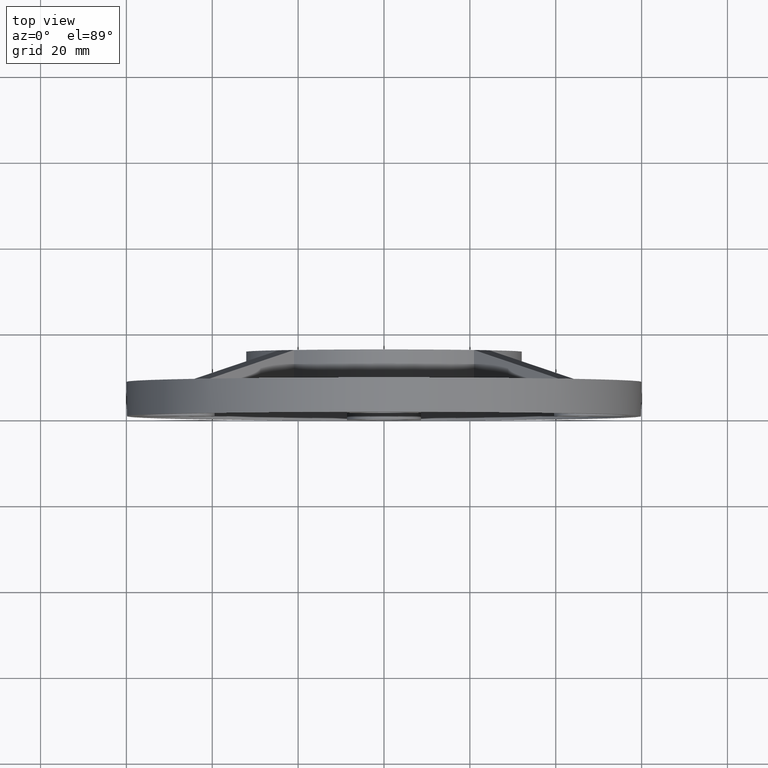
[diagram: clean part render]
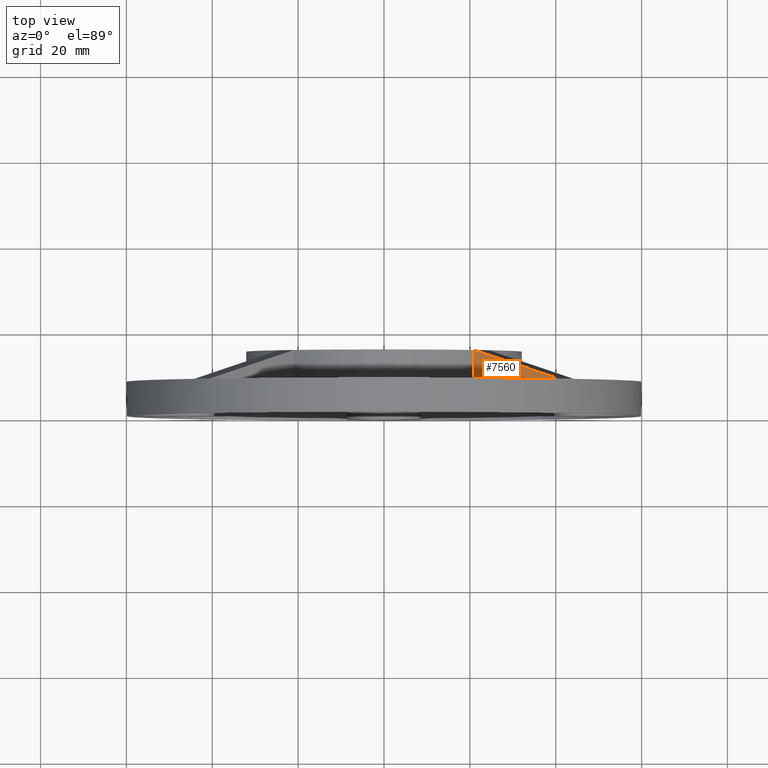
[diagram: same view with one face highlighted and labeled with its STEP entity id]
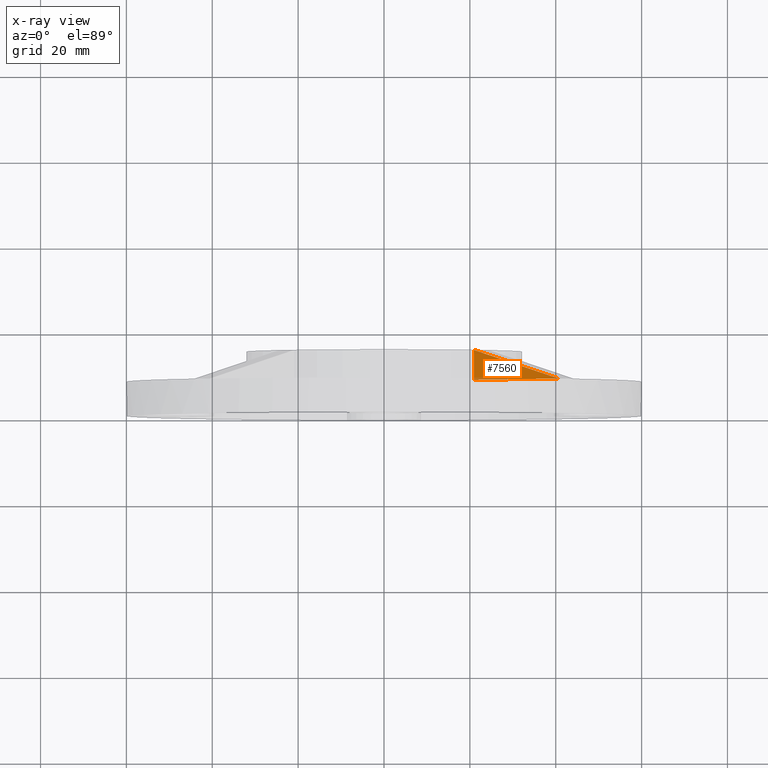
[diagram: x-ray of the same camera — body ghosted, the highlighted face saturated]
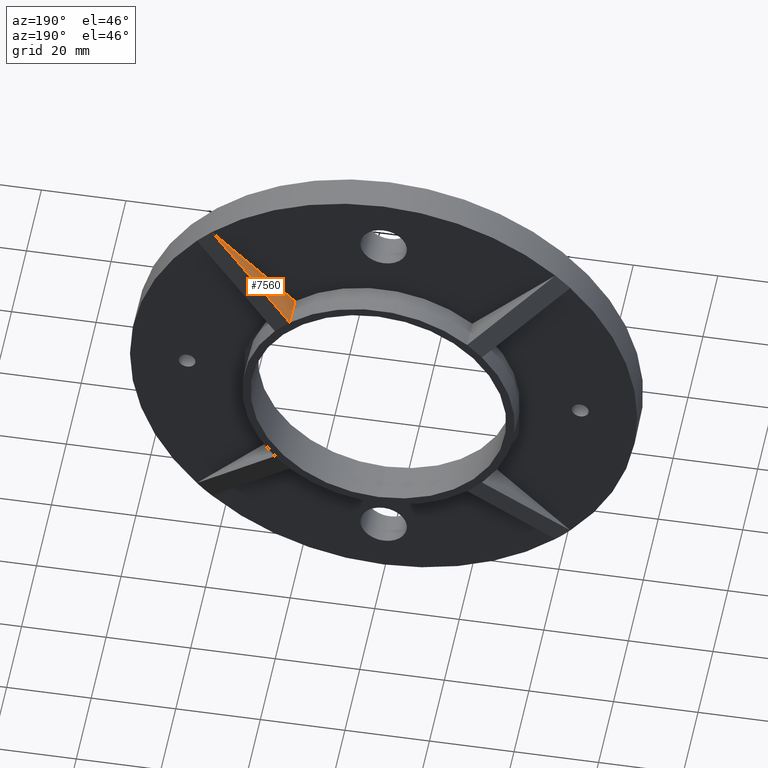
[diagram: same view with one face highlighted and labeled with its STEP entity id]
A machine part, top view. The second image highlights one B-rep face of the part: STEP entity #7560.
The next image is the same camera in x-ray: the body ghosted, the highlighted face saturated — about 6% of this face is hidden behind the body in this view.
A second angle (auxiliary view) of the same face is appended — the face is thin or edge-on in the first view.
In plain terms, the highlighted planar face has unit normal (0.7071, 0, -0.7071).
Its self-contained STEP definition (entity closure, byte-faithful):
#94 = VERTEX_POINT ( 'NONE', #5896 ) ;
#855 = PLANE ( 'NONE',  #9979 ) ;
#980 = DIRECTION ( 'NONE',  ( 0.7071067811865453523, 0.000000000000000000, 0.7071067811865497932 ) ) ;
#1325 = VECTOR ( 'NONE', #11685, 1000.000000000000000 ) ;
#1641 = FACE_OUTER_BOUND ( 'NONE', #7506, .T. ) ;
#2348 = EDGE_CURVE ( 'NONE', #94, #5902, #3161, .T. ) ;
#2478 = CARTESIAN_POINT ( 'NONE',  ( 20.96780539522843156, 8.000000000000000000, 24.50333930116117287 ) ) ;
#3161 = LINE ( 'NONE', #11842, #5082 ) ;
#3806 = ORIENTED_EDGE ( 'NONE', *, *, #2348, .F. ) ;
#5082 = VECTOR ( 'NONE', #8898, 999.9999999999998863 ) ;
#5730 = ORIENTED_EDGE ( 'NONE', *, *, #6637, .T. ) ;
#5896 = CARTESIAN_POINT ( 'NONE',  ( 20.96780539522843156, 15.00000000000000000, 24.50333930116117287 ) ) ;
#5902 = VERTEX_POINT ( 'NONE', #10318 ) ;
#6517 = ORIENTED_EDGE ( 'NONE', *, *, #10211, .T. ) ;
#6637 = EDGE_CURVE ( 'NONE', #8905, #5902, #10111, .T. ) ;
#7207 = CARTESIAN_POINT ( 'NONE',  ( 20.96780539522843156, 8.000000000000000000, 24.50333930116117287 ) ) ;
#7506 = EDGE_LOOP ( 'NONE', ( #5730, #3806, #6517 ) ) ;
#7560 = ADVANCED_FACE ( 'NONE', ( #1641 ), #855, .F. ) ;
#8898 = DIRECTION ( 'NONE',  ( 0.6856957309421415347, -0.2442186093143615677, 0.6856957309421443103 ) ) ;
#8905 = VERTEX_POINT ( 'NONE', #2478 ) ;
#9029 = DIRECTION ( 'NONE',  ( 0.7071067811865497932, 0.000000000000000000, -0.7071067811865453523 ) ) ;
#9303 = LINE ( 'NONE', #11416, #1325 ) ;
#9979 = AXIS2_PLACEMENT_3D ( 'NONE', #11973, #9029, #12881 ) ;
#10111 = LINE ( 'NONE', #7207, #11847 ) ;
#10211 = EDGE_CURVE ( 'NONE', #94, #8905, #9303, .T. ) ;
#10318 = CARTESIAN_POINT ( 'NONE',  ( 40.62179544156653321, 8.000000000000000000, 44.15732934749929228 ) ) ;
#11416 = CARTESIAN_POINT ( 'NONE',  ( 20.96780539522843156, 47.79493927827718380, 24.50333930116117287 ) ) ;
#11685 = DIRECTION ( 'NONE',  ( -0.000000000000000000, -1.000000000000000000, -0.000000000000000000 ) ) ;
#11842 = CARTESIAN_POINT ( 'NONE',  ( 20.96780539522845288, 15.00000000000000000, 24.50333930116113734 ) ) ;
#11847 = VECTOR ( 'NONE', #980, 1000.000000000000114 ) ;
#11973 = CARTESIAN_POINT ( 'NONE',  ( 20.96780539522843156, 47.79493927827718380, 24.50333930116117287 ) ) ;
#12881 = DIRECTION ( 'NONE',  ( -0.7071067811865453523, 0.000000000000000000, -0.7071067811865497932 ) ) ;